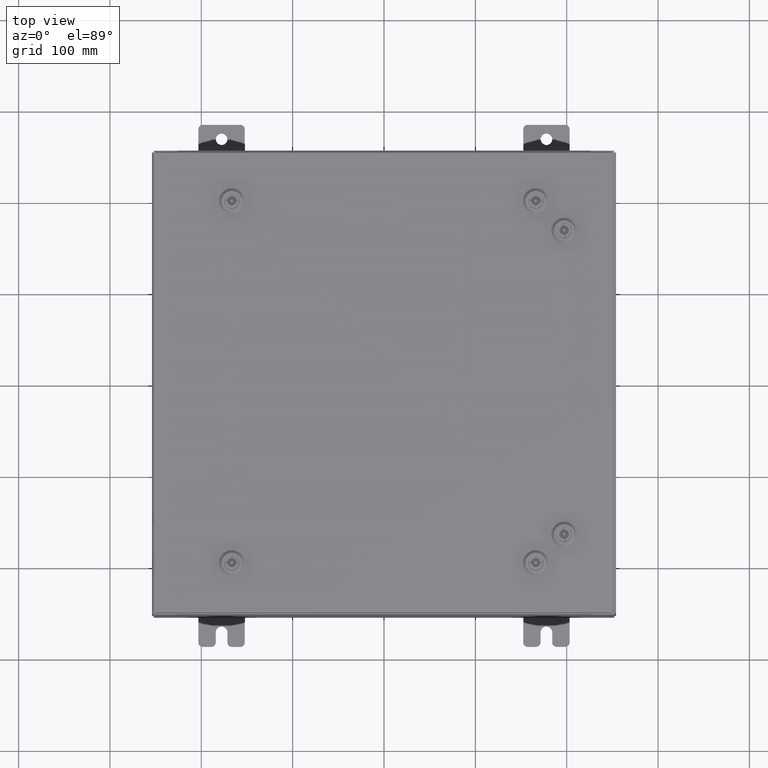
[diagram: clean part render]
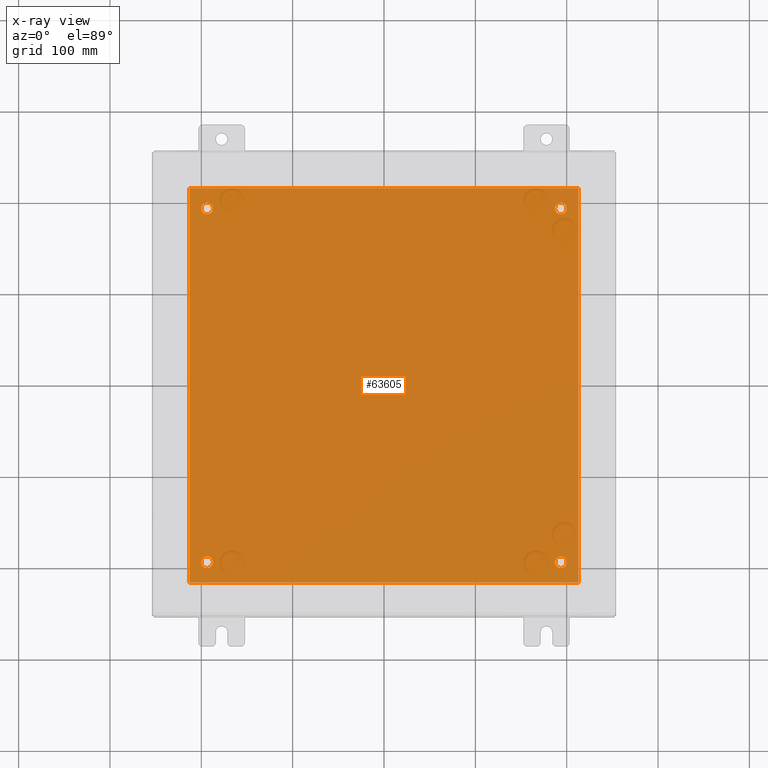
[diagram: x-ray — body ghosted, one internal face saturated and labeled with its STEP entity id]
A machine part, top view, then the same camera in x-ray: the body is ghosted and one INTERNAL B-rep face — a face not visible from any outside direction — is saturated and labeled: STEP entity #63605.
In plain terms, the highlighted planar face has unit normal (0, 0, -1).
Its self-contained STEP definition (entity closure, byte-faithful):
#675 = CARTESIAN_POINT ( 'NONE',  ( 7.625000000000001800, 7.625000000000000900, -0.1039999999999999800 ) ) ;
#1084 = VERTEX_POINT ( 'NONE', #3373 ) ;
#1663 = VERTEX_POINT ( 'NONE', #30002 ) ;
#3230 = DIRECTION ( 'NONE',  ( -0.0000000000000000000, -0.0000000000000000000, 1.000000000000000000 ) ) ;
#3373 = CARTESIAN_POINT ( 'NONE',  ( -7.375000000000001800, -7.625000000000000900, -0.1039999999999999800 ) ) ;
#3387 = FACE_BOUND ( 'NONE', #55204, .T. ) ;
#4713 = ORIENTED_EDGE ( 'NONE', *, *, #52923, .T. ) ;
#5240 = CARTESIAN_POINT ( 'NONE',  ( 8.383000000000000900, -8.499999999999998200, -0.1039999999999998100 ) ) ;
#5623 = DIRECTION ( 'NONE',  ( -1.000000000000000000, 0.0000000000000000000, 0.0000000000000000000 ) ) ;
#6374 = CARTESIAN_POINT ( 'NONE',  ( 7.625000000000001800, -7.625000000000000900, -0.1039999999999999800 ) ) ;
#7987 = CIRCLE ( 'NONE', #50417, 0.2499999999999998100 ) ;
#8564 = EDGE_CURVE ( 'NONE', #59898, #1663, #40288, .T. ) ;
#9473 = DIRECTION ( 'NONE',  ( -1.000000000000000000, -0.0000000000000000000, -0.0000000000000000000 ) ) ;
#10163 = DIRECTION ( 'NONE',  ( 0.0000000000000000000, 1.000000000000000000, 0.0000000000000000000 ) ) ;
#10215 = EDGE_CURVE ( 'NONE', #51527, #19843, #33278, .T. ) ;
#10649 = ORIENTED_EDGE ( 'NONE', *, *, #47793, .F. ) ;
#10765 = DIRECTION ( 'NONE',  ( -0.0000000000000000000, -0.0000000000000000000, 1.000000000000000000 ) ) ;
#11293 = DIRECTION ( 'NONE',  ( -1.000000000000000000, 0.0000000000000000000, 0.0000000000000000000 ) ) ;
#11607 = ORIENTED_EDGE ( 'NONE', *, *, #12081, .T. ) ;
#11764 = ORIENTED_EDGE ( 'NONE', *, *, #40371, .F. ) ;
#12081 = EDGE_CURVE ( 'NONE', #36807, #29571, #7987, .T. ) ;
#12431 = CARTESIAN_POINT ( 'NONE',  ( -7.625000000000001800, 7.625000000000000900, -0.1039999999999999800 ) ) ;
#12634 = VERTEX_POINT ( 'NONE', #48430 ) ;
#13730 = EDGE_LOOP ( 'NONE', ( #33012, #46487 ) ) ;
#14195 = VECTOR ( 'NONE', #36486, 39.37007874015748100 ) ;
#15708 = DIRECTION ( 'NONE',  ( -0.0000000000000000000, -0.0000000000000000000, 1.000000000000000000 ) ) ;
#16386 = FACE_BOUND ( 'NONE', #49163, .T. ) ;
#16980 = AXIS2_PLACEMENT_3D ( 'NONE', #675, #34963, #5623 ) ;
#17352 = DIRECTION ( 'NONE',  ( -1.000000000000000000, 0.0000000000000000000, 0.0000000000000000000 ) ) ;
#17905 = CARTESIAN_POINT ( 'NONE',  ( 7.375000000000003600, 7.625000000000000900, -0.1039999999999999800 ) ) ;
#17949 = CARTESIAN_POINT ( 'NONE',  ( -8.382999999999999100, 8.500000000000000000, -0.1039999999999998100 ) ) ;
#18652 = CARTESIAN_POINT ( 'NONE',  ( -8.382999999999999100, -8.499999999999998200, -0.1039999999999998100 ) ) ;
#19017 = AXIS2_PLACEMENT_3D ( 'NONE', #24377, #58674, #29309 ) ;
#19360 = EDGE_LOOP ( 'NONE', ( #43457, #10649, #11764, #58822 ) ) ;
#19843 = VERTEX_POINT ( 'NONE', #34403 ) ;
#20593 = EDGE_CURVE ( 'NONE', #61958, #31466, #23549, .T. ) ;
#21366 = DIRECTION ( 'NONE',  ( 0.0000000000000000000, 0.0000000000000000000, -1.000000000000000000 ) ) ;
#22270 = CARTESIAN_POINT ( 'NONE',  ( -8.382999999999999100, 8.500000000000000000, -0.1039999999999998100 ) ) ;
#23540 = CIRCLE ( 'NONE', #26211, 0.2499999999999998100 ) ;
#23549 = CIRCLE ( 'NONE', #19017, 0.2499999999999987000 ) ;
#23858 = ORIENTED_EDGE ( 'NONE', *, *, #41505, .T. ) ;
#23868 = CIRCLE ( 'NONE', #31776, 0.2499999999999998100 ) ;
#24377 = CARTESIAN_POINT ( 'NONE',  ( 7.625000000000001800, -7.625000000000000900, -0.1039999999999999800 ) ) ;
#26211 = AXIS2_PLACEMENT_3D ( 'NONE', #45090, #15708, #50023 ) ;
#26953 = DIRECTION ( 'NONE',  ( -0.0000000000000000000, -0.0000000000000000000, 1.000000000000000000 ) ) ;
#27405 = ORIENTED_EDGE ( 'NONE', *, *, #20593, .T. ) ;
#27900 = FACE_OUTER_BOUND ( 'NONE', #19360, .T. ) ;
#28020 = EDGE_CURVE ( 'NONE', #47731, #1084, #23868, .T. ) ;
#29309 = DIRECTION ( 'NONE',  ( -1.000000000000000000, 0.0000000000000000000, 0.0000000000000000000 ) ) ;
#29571 = VERTEX_POINT ( 'NONE', #31607 ) ;
#30002 = CARTESIAN_POINT ( 'NONE',  ( 8.383000000000000900, -8.499999999999998200, -0.1039999999999999800 ) ) ;
#30791 = CARTESIAN_POINT ( 'NONE',  ( 7.375000000000003600, -7.625000000000000900, -0.1039999999999999800 ) ) ;
#31466 = VERTEX_POINT ( 'NONE', #44836 ) ;
#31607 = CARTESIAN_POINT ( 'NONE',  ( -7.375000000000001800, 7.625000000000000900, -0.1039999999999999800 ) ) ;
#31776 = AXIS2_PLACEMENT_3D ( 'NONE', #40124, #10765, #45050 ) ;
#32562 = CARTESIAN_POINT ( 'NONE',  ( -7.625000000000001800, 7.625000000000000900, -0.1039999999999999800 ) ) ;
#33012 = ORIENTED_EDGE ( 'NONE', *, *, #49909, .T. ) ;
#33278 = CIRCLE ( 'NONE', #16980, 0.2499999999999987000 ) ;
#34403 = CARTESIAN_POINT ( 'NONE',  ( 7.875000000000000900, 7.625000000000000900, -0.1039999999999999800 ) ) ;
#34683 = ORIENTED_EDGE ( 'NONE', *, *, #37451, .T. ) ;
#34963 = DIRECTION ( 'NONE',  ( -0.0000000000000000000, -0.0000000000000000000, 1.000000000000000000 ) ) ;
#35046 = CIRCLE ( 'NONE', #52563, 0.2499999999999987000 ) ;
#35422 = ORIENTED_EDGE ( 'NONE', *, *, #10215, .T. ) ;
#35754 = CARTESIAN_POINT ( 'NONE',  ( 0.0000000000000000000, 0.0000000000000000000, -0.1039999999999999800 ) ) ;
#36486 = DIRECTION ( 'NONE',  ( 1.000000000000000000, 0.0000000000000000000, 0.0000000000000000000 ) ) ;
#36664 = LINE ( 'NONE', #43966, #61184 ) ;
#36703 = CARTESIAN_POINT ( 'NONE',  ( -8.500000000000000000, -8.499999999999998200, -0.1039999999999999800 ) ) ;
#36807 = VERTEX_POINT ( 'NONE', #37760 ) ;
#37405 = AXIS2_PLACEMENT_3D ( 'NONE', #12431, #46737, #17352 ) ;
#37451 = EDGE_CURVE ( 'NONE', #19843, #51527, #54456, .T. ) ;
#37510 = DIRECTION ( 'NONE',  ( -1.000000000000000000, 0.0000000000000000000, 0.0000000000000000000 ) ) ;
#37760 = CARTESIAN_POINT ( 'NONE',  ( -7.875000000000001800, 7.625000000000000900, -0.1039999999999999800 ) ) ;
#40124 = CARTESIAN_POINT ( 'NONE',  ( -7.625000000000001800, -7.625000000000000900, -0.1039999999999999800 ) ) ;
#40288 = LINE ( 'NONE', #36703, #14195 ) ;
#40371 = EDGE_CURVE ( 'NONE', #12634, #45294, #36664, .T. ) ;
#40667 = DIRECTION ( 'NONE',  ( -0.0000000000000000000, -0.0000000000000000000, 1.000000000000000000 ) ) ;
#40916 = PLANE ( 'NONE',  #54916 ) ;
#40956 = FACE_BOUND ( 'NONE', #46291, .T. ) ;
#41505 = EDGE_CURVE ( 'NONE', #31466, #61958, #35046, .T. ) ;
#41765 = AXIS2_PLACEMENT_3D ( 'NONE', #56300, #26953, #61252 ) ;
#42495 = FACE_BOUND ( 'NONE', #13730, .T. ) ;
#42893 = VECTOR ( 'NONE', #57166, 39.37007874015748100 ) ;
#43457 = ORIENTED_EDGE ( 'NONE', *, *, #8564, .F. ) ;
#43966 = CARTESIAN_POINT ( 'NONE',  ( -8.500000000000000000, 8.500000000000000000, -0.1039999999999999800 ) ) ;
#44836 = CARTESIAN_POINT ( 'NONE',  ( 7.875000000000000900, -7.625000000000000900, -0.1039999999999999800 ) ) ;
#45050 = DIRECTION ( 'NONE',  ( -1.000000000000000000, 0.0000000000000000000, 0.0000000000000000000 ) ) ;
#45090 = CARTESIAN_POINT ( 'NONE',  ( -7.625000000000001800, -7.625000000000000900, -0.1039999999999999800 ) ) ;
#45294 = VERTEX_POINT ( 'NONE', #22270 ) ;
#46291 = EDGE_LOOP ( 'NONE', ( #4713, #11607 ) ) ;
#46487 = ORIENTED_EDGE ( 'NONE', *, *, #28020, .T. ) ;
#46737 = DIRECTION ( 'NONE',  ( -0.0000000000000000000, -0.0000000000000000000, 1.000000000000000000 ) ) ;
#47731 = VERTEX_POINT ( 'NONE', #50994 ) ;
#47793 = EDGE_CURVE ( 'NONE', #45294, #59898, #55887, .T. ) ;
#48430 = CARTESIAN_POINT ( 'NONE',  ( 8.383000000000000900, 8.500000000000000000, -0.1039999999999999800 ) ) ;
#49163 = EDGE_LOOP ( 'NONE', ( #34683, #35422 ) ) ;
#49909 = EDGE_CURVE ( 'NONE', #1084, #47731, #23540, .T. ) ;
#50023 = DIRECTION ( 'NONE',  ( -1.000000000000000000, 0.0000000000000000000, 0.0000000000000000000 ) ) ;
#50417 = AXIS2_PLACEMENT_3D ( 'NONE', #32562, #3230, #37510 ) ;
#50994 = CARTESIAN_POINT ( 'NONE',  ( -7.875000000000001800, -7.625000000000000900, -0.1039999999999999800 ) ) ;
#51527 = VERTEX_POINT ( 'NONE', #17905 ) ;
#52563 = AXIS2_PLACEMENT_3D ( 'NONE', #6374, #40667, #11293 ) ;
#52923 = EDGE_CURVE ( 'NONE', #29571, #36807, #57873, .T. ) ;
#54456 = CIRCLE ( 'NONE', #41765, 0.2499999999999987000 ) ;
#54916 = AXIS2_PLACEMENT_3D ( 'NONE', #35754, #21366, #55660 ) ;
#55204 = EDGE_LOOP ( 'NONE', ( #23858, #27405 ) ) ;
#55660 = DIRECTION ( 'NONE',  ( -1.000000000000000000, 0.0000000000000000000, -0.0000000000000000000 ) ) ;
#55887 = LINE ( 'NONE', #17949, #42893 ) ;
#56300 = CARTESIAN_POINT ( 'NONE',  ( 7.625000000000001800, 7.625000000000000900, -0.1039999999999999800 ) ) ;
#57166 = DIRECTION ( 'NONE',  ( 0.0000000000000000000, -1.000000000000000000, 0.0000000000000000000 ) ) ;
#57687 = EDGE_CURVE ( 'NONE', #1663, #12634, #62219, .T. ) ;
#57873 = CIRCLE ( 'NONE', #37405, 0.2499999999999998100 ) ;
#58674 = DIRECTION ( 'NONE',  ( -0.0000000000000000000, -0.0000000000000000000, 1.000000000000000000 ) ) ;
#58822 = ORIENTED_EDGE ( 'NONE', *, *, #57687, .F. ) ;
#59898 = VERTEX_POINT ( 'NONE', #18652 ) ;
#60670 = VECTOR ( 'NONE', #10163, 39.37007874015748100 ) ;
#61184 = VECTOR ( 'NONE', #9473, 39.37007874015748100 ) ;
#61252 = DIRECTION ( 'NONE',  ( -1.000000000000000000, 0.0000000000000000000, 0.0000000000000000000 ) ) ;
#61958 = VERTEX_POINT ( 'NONE', #30791 ) ;
#62219 = LINE ( 'NONE', #5240, #60670 ) ;
#63605 = ADVANCED_FACE ( 'NONE', ( #42495, #3387, #16386, #40956, #27900 ), #40916, .T. ) ;